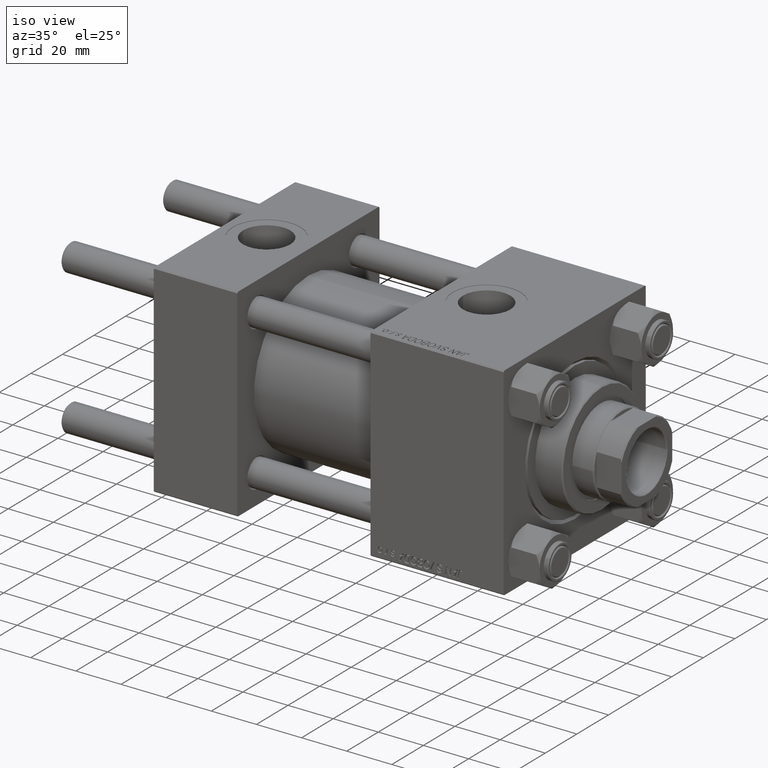
[diagram: clean part render]
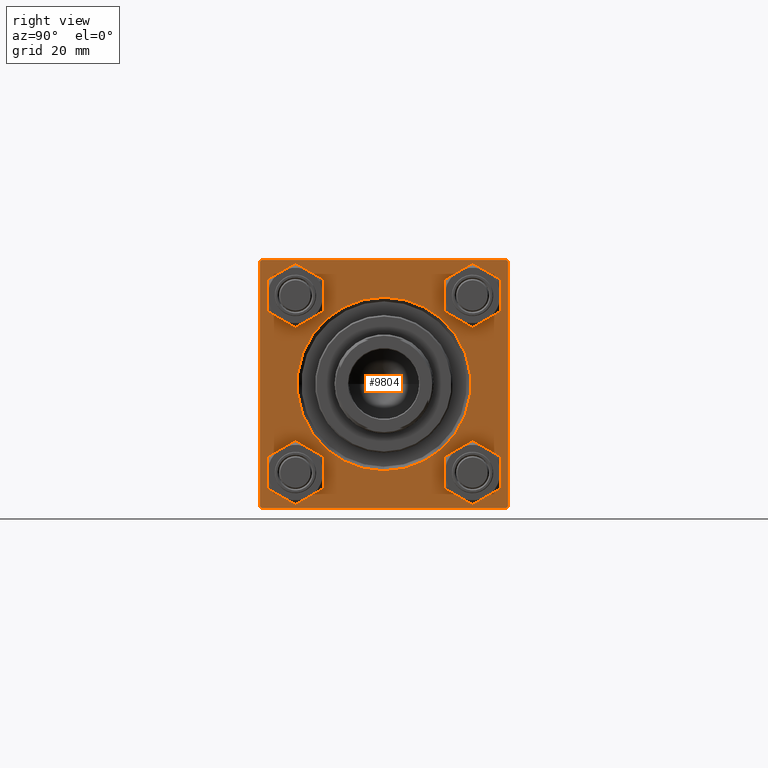
[diagram: tour spotlight — one face highlighted and labeled with its STEP entity id]
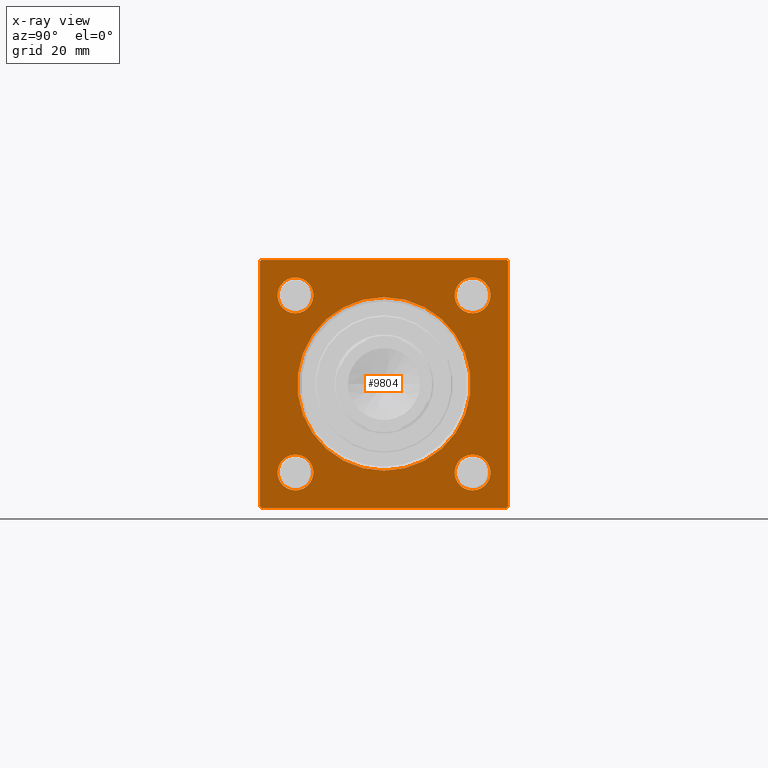
[diagram: x-ray of the same camera — body ghosted, this tour face saturated]
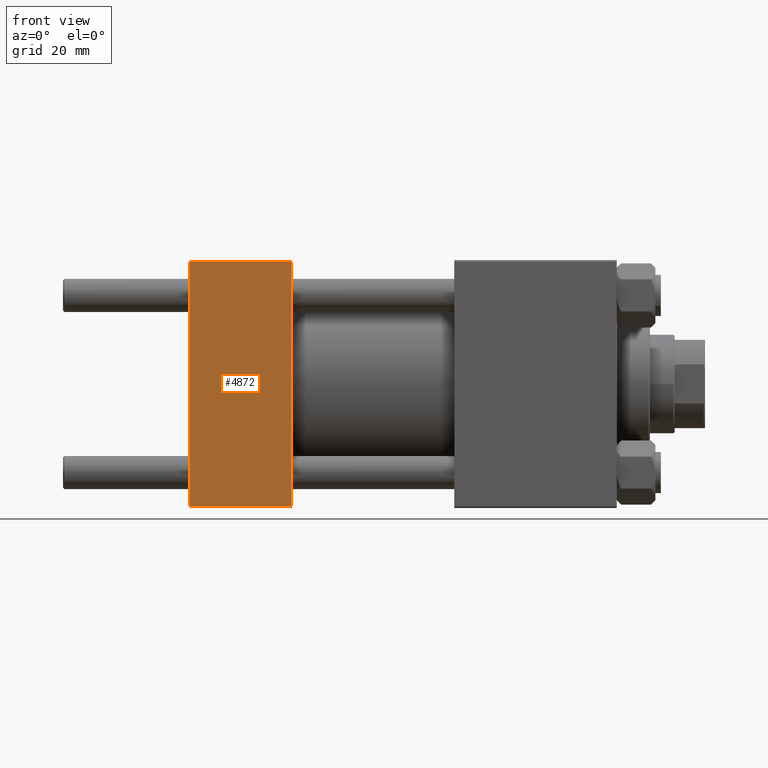
[diagram: tour spotlight — one face highlighted and labeled with its STEP entity id]
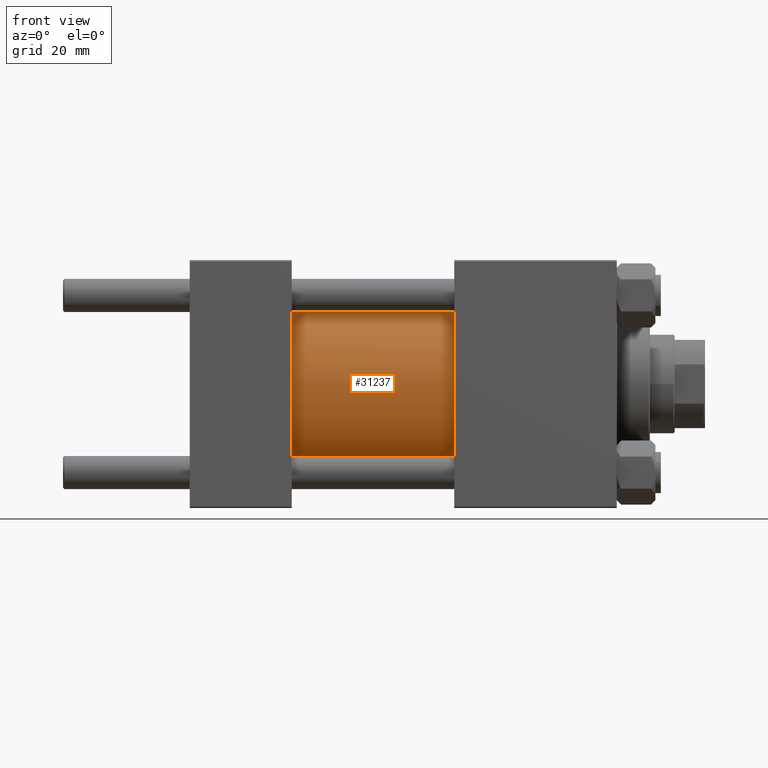
[diagram: tour spotlight — one face highlighted and labeled with its STEP entity id]
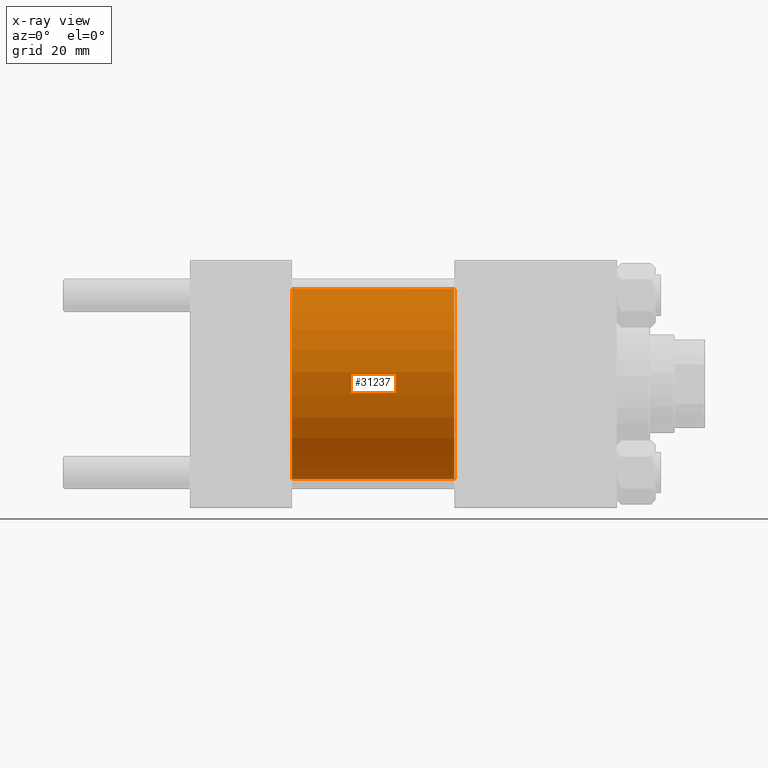
[diagram: x-ray of the same camera — body ghosted, this tour face saturated]
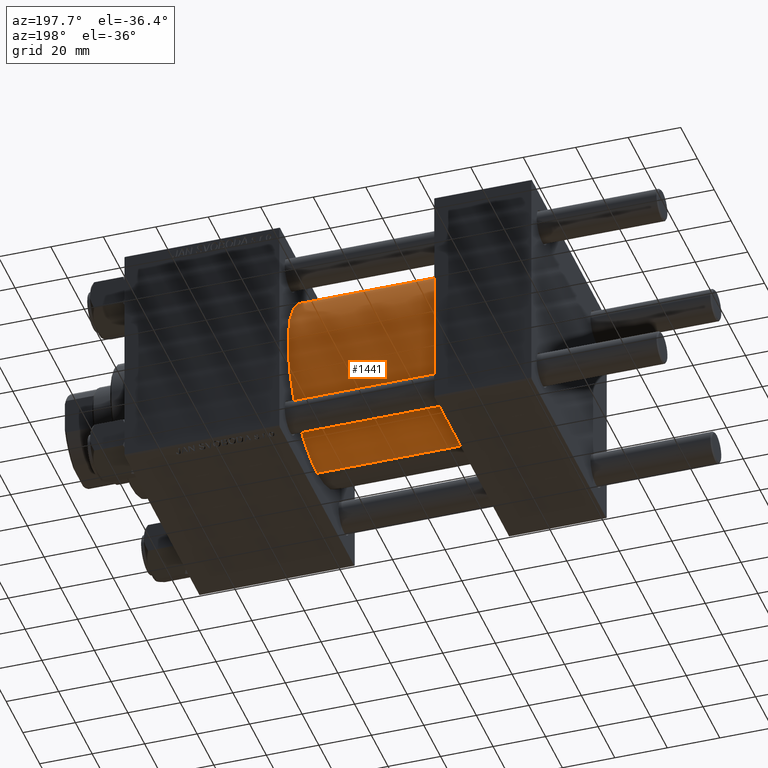
[diagram: tour spotlight — one face highlighted and labeled with its STEP entity id]
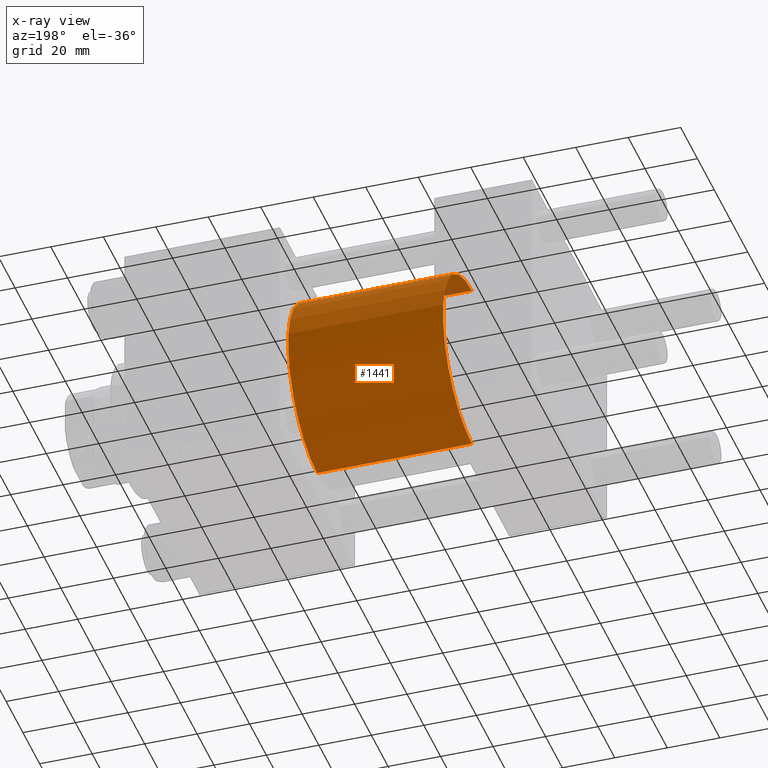
[diagram: x-ray of the same camera — body ghosted, this tour face saturated]
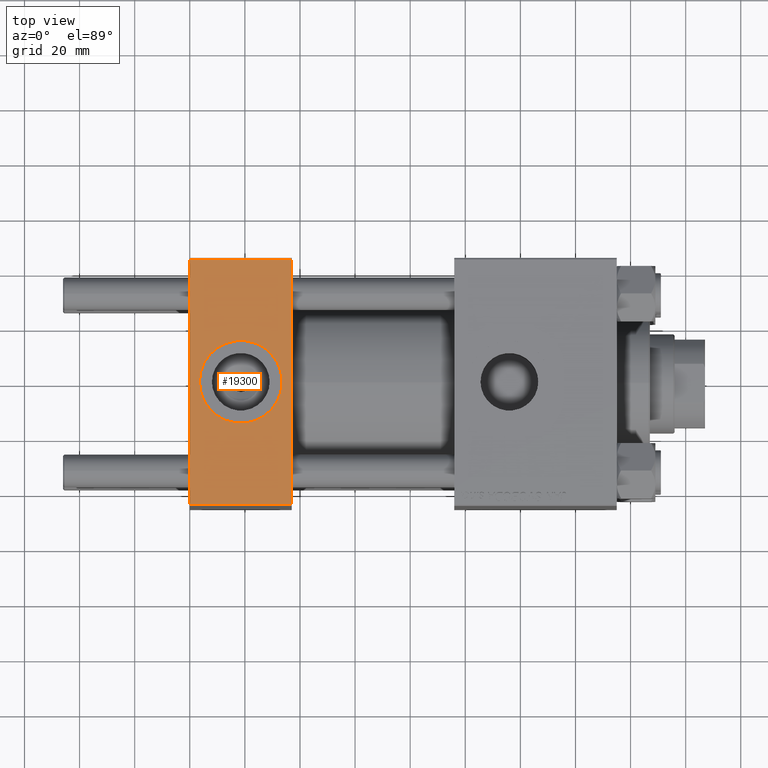
[diagram: tour spotlight — one face highlighted and labeled with its STEP entity id]
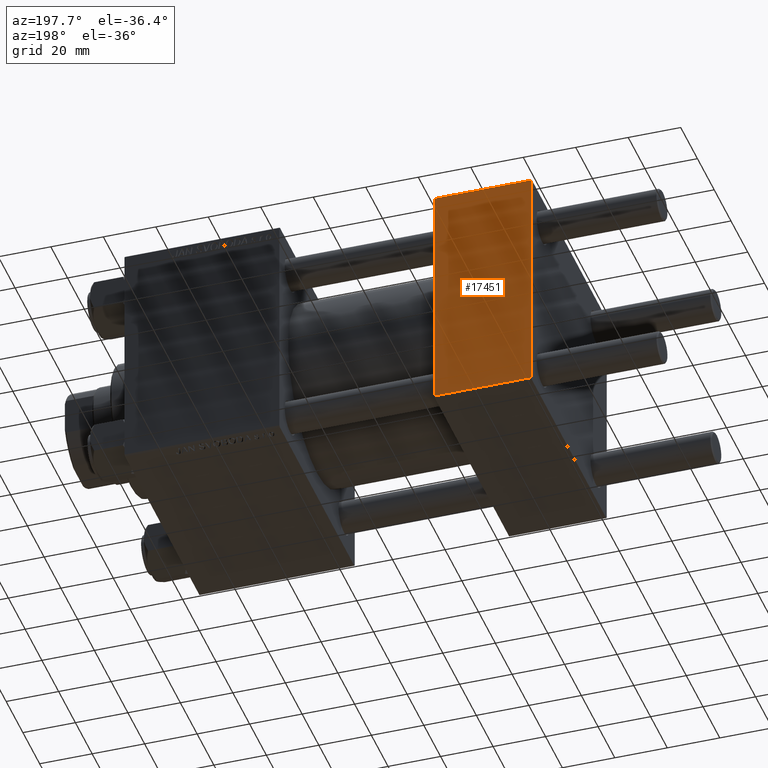
[diagram: tour spotlight — one face highlighted and labeled with its STEP entity id]
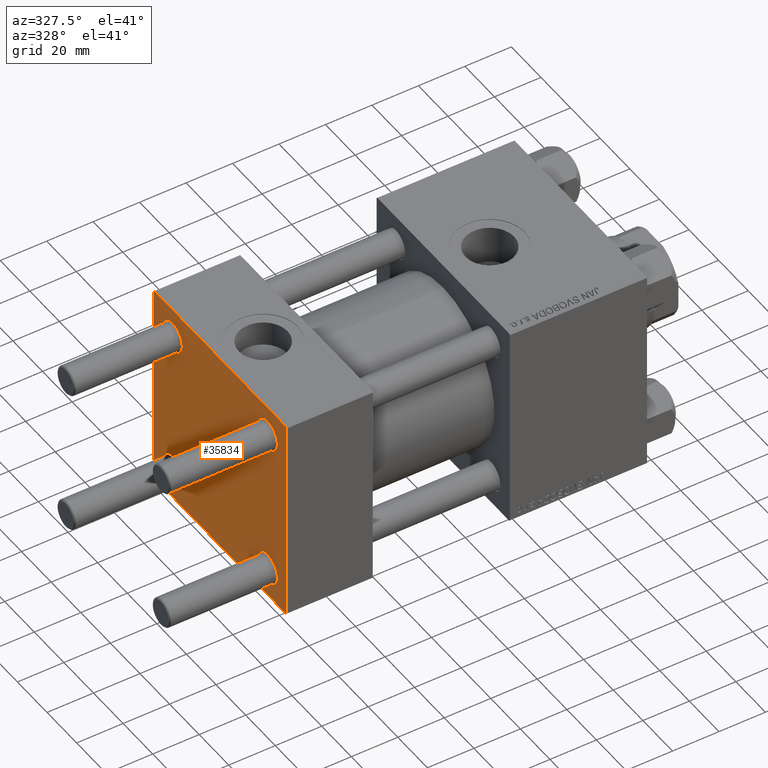
[diagram: tour spotlight — one face highlighted and labeled with its STEP entity id]
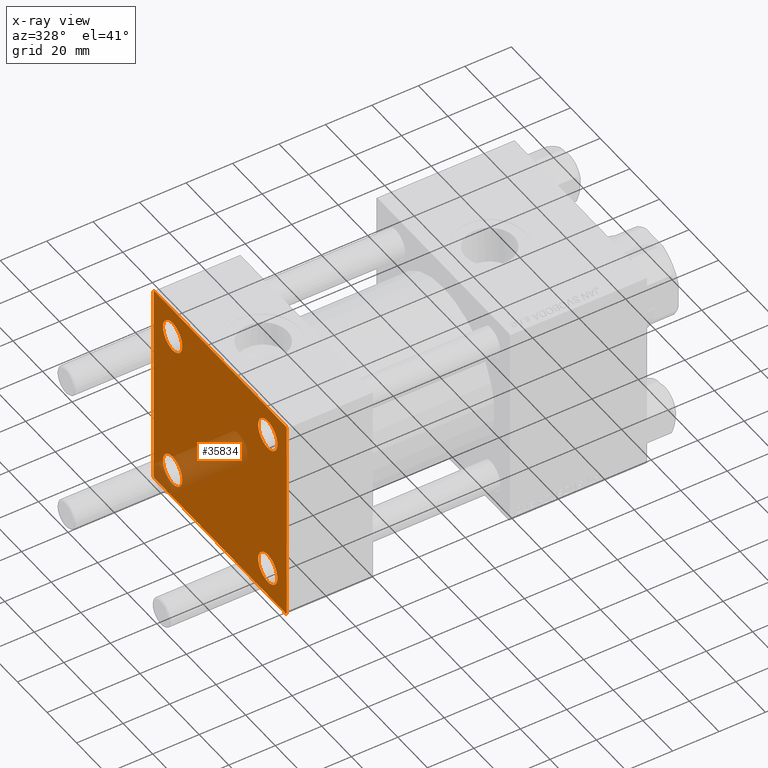
[diagram: x-ray of the same camera — body ghosted, this tour face saturated]
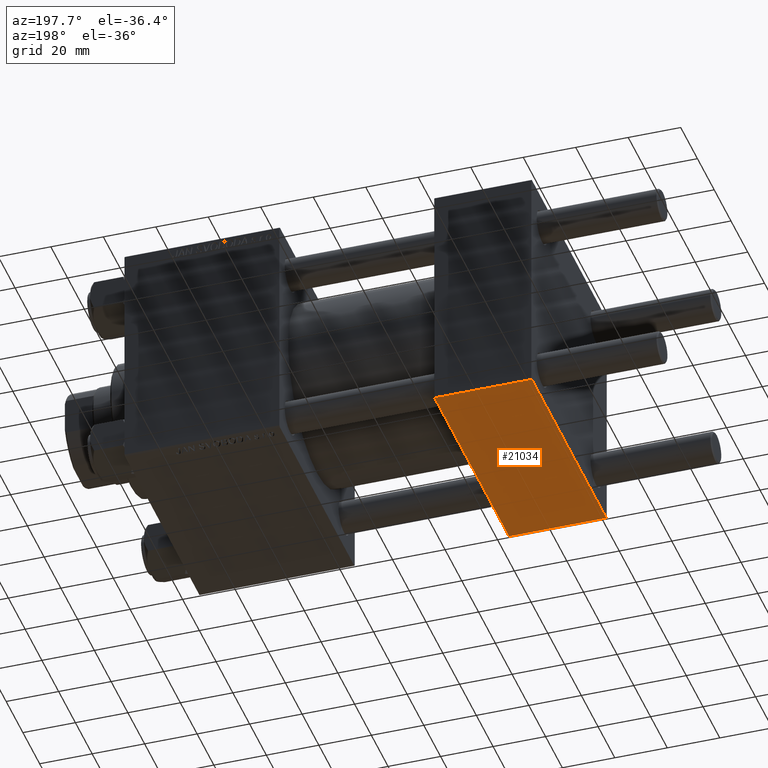
[diagram: tour spotlight — one face highlighted and labeled with its STEP entity id]
A machine part: a face-by-face anatomy tour. The part has 1134 B-rep faces; the first image is the clean iso view, then the 8 largest visible faces are spotlighted one at a time (largest first), each with its STEP entity span.

Face 1 — right view, entity #9804. An x-ray twin of the same camera follows (body ghosted, this face saturated) — the face is partly hidden behind the body. In plain terms, the highlighted planar face has unit normal (-1, 0, 0).
Definition (entity closure, byte-faithful):
#967 = DIRECTION ( 'NONE',  ( 0.000000000000000000, 0.000000000000000000, 1.000000000000000000 ) ) ;
#1163 = ORIENTED_EDGE ( 'NONE', *, *, #9986, .T. ) ;
#1284 = ORIENTED_EDGE ( 'NONE', *, *, #13072, .F. ) ;
#1301 = CARTESIAN_POINT ( 'NONE',  ( 155.0000000000000000, 0.000000000000000000, 0.000000000000000000 ) ) ;
#1868 = CARTESIAN_POINT ( 'NONE',  ( 155.0000000000000000, 32.14999999999999147, -32.15000000000000568 ) ) ;
#2007 = CARTESIAN_POINT ( 'NONE',  ( 155.0000000000000000, 32.14999999999999147, 32.15000000000000568 ) ) ;
#2206 = CIRCLE ( 'NONE', #34367, 6.500000000000061284 ) ;
#2856 = ORIENTED_EDGE ( 'NONE', *, *, #17384, .T. ) ;
#3367 = ORIENTED_EDGE ( 'NONE', *, *, #28137, .F. ) ;
#4456 = CARTESIAN_POINT ( 'NONE',  ( 155.0000000000000000, -32.14999999999997726, -25.64999999999994884 ) ) ;
#5465 = EDGE_CURVE ( 'NONE', #45666, #49469, #15389, .T. ) ;
#5633 = CARTESIAN_POINT ( 'NONE',  ( 155.0000000000000000, 32.14999999999999147, -38.65000000000006963 ) ) ;
#5786 = AXIS2_PLACEMENT_3D ( 'NONE', #2007, #48321, #21630 ) ;
#5815 = LINE ( 'NONE', #28462, #49615 ) ;
#6277 = AXIS2_PLACEMENT_3D ( 'NONE', #1301, #27967, #35534 ) ;
#6282 = CARTESIAN_POINT ( 'NONE',  ( 155.0000000000000000, -32.14999999999997726, 25.64999999999994884 ) ) ;
#6575 = CIRCLE ( 'NONE', #5786, 6.500000000000061284 ) ;
#6636 = ORIENTED_EDGE ( 'NONE', *, *, #48185, .T. ) ;
#6940 = EDGE_CURVE ( 'NONE', #10728, #13804, #5815, .T. ) ;
#7211 = AXIS2_PLACEMENT_3D ( 'NONE', #1868, #17222, #24530 ) ;
#8517 = DIRECTION ( 'NONE',  ( -1.000000000000000000, -0.000000000000000000, -0.000000000000000000 ) ) ;
#8711 = EDGE_CURVE ( 'NONE', #20660, #17192, #2206, .T. ) ;
#9014 = CARTESIAN_POINT ( 'NONE',  ( 155.0000000000000000, -32.14999999999997726, 32.15000000000001279 ) ) ;
#9123 = VERTEX_POINT ( 'NONE', #47638 ) ;
#9804 = ADVANCED_FACE ( 'NONE', ( #15748, #31080, #27317, #42697, #29035, #39658 ), #43691, .F. ) ;
#9914 = CARTESIAN_POINT ( 'NONE',  ( 155.0000000000000000, -45.00000000000000000, 44.99999999999998579 ) ) ;
#9986 = EDGE_CURVE ( 'NONE', #31466, #15424, #34404, .T. ) ;
#10072 = DIRECTION ( 'NONE',  ( -0.000000000000000000, 0.7071067811865474617, 0.7071067811865474617 ) ) ;
#10728 = VERTEX_POINT ( 'NONE', #36000 ) ;
#11461 = ORIENTED_EDGE ( 'NONE', *, *, #6940, .T. ) ;
#11485 = ORIENTED_EDGE ( 'NONE', *, *, #28198, .T. ) ;
#11598 = CARTESIAN_POINT ( 'NONE',  ( 155.0000000000000000, -44.49999999999990052, -45.00000000000000000 ) ) ;
#11983 = DIRECTION ( 'NONE',  ( 0.000000000000000000, 0.000000000000000000, 1.000000000000000000 ) ) ;
#12416 = EDGE_LOOP ( 'NONE', ( #11485, #13266 ) ) ;
#12618 = VECTOR ( 'NONE', #45531, 1000.000000000000000 ) ;
#12695 = CARTESIAN_POINT ( 'NONE',  ( 155.0000000000000000, 45.00000000000001421, 45.00000000000000000 ) ) ;
#12733 = AXIS2_PLACEMENT_3D ( 'NONE', #41513, #26146, #22136 ) ;
#12896 = EDGE_LOOP ( 'NONE', ( #46704, #1163 ) ) ;
#13072 = EDGE_CURVE ( 'NONE', #9123, #13804, #30380, .T. ) ;
#13216 = DIRECTION ( 'NONE',  ( -1.000000000000000000, 0.000000000000000000, -0.000000000000000000 ) ) ;
#13266 = ORIENTED_EDGE ( 'NONE', *, *, #15123, .T. ) ;
#13334 = VECTOR ( 'NONE', #46619, 1000.000000000000114 ) ;
#13433 = DIRECTION ( 'NONE',  ( 0.000000000000000000, -1.000000000000000000, -1.541976423090495140E-16 ) ) ;
#13804 = VERTEX_POINT ( 'NONE', #11598 ) ;
#14576 = CARTESIAN_POINT ( 'NONE',  ( 155.0000000000000000, 45.00000000000001421, 45.00000000000000000 ) ) ;
#14806 = DIRECTION ( 'NONE',  ( 0.000000000000000000, -1.000000000000000000, 0.000000000000000000 ) ) ;
#15123 = EDGE_CURVE ( 'NONE', #32362, #40669, #45727, .T. ) ;
#15159 = CARTESIAN_POINT ( 'NONE',  ( 155.0000000000000000, 44.49999999999998579, 45.00000000000000000 ) ) ;
#15171 = CARTESIAN_POINT ( 'NONE',  ( 155.0000000000000000, -32.14999999999997726, -38.65000000000007674 ) ) ;
#15389 = LINE ( 'NONE', #22936, #17373 ) ;
#15424 = VERTEX_POINT ( 'NONE', #31593 ) ;
#15748 = FACE_BOUND ( 'NONE', #34944, .T. ) ;
#15828 = ORIENTED_EDGE ( 'NONE', *, *, #18927, .T. ) ;
#15841 = DIRECTION ( 'NONE',  ( 0.000000000000000000, 0.000000000000000000, 1.000000000000000000 ) ) ;
#16741 = AXIS2_PLACEMENT_3D ( 'NONE', #28790, #13216, #36355 ) ;
#17064 = AXIS2_PLACEMENT_3D ( 'NONE', #37937, #41219, #22330 ) ;
#17192 = VERTEX_POINT ( 'NONE', #42685 ) ;
#17222 = DIRECTION ( 'NONE',  ( -1.000000000000000000, -0.000000000000000000, -0.000000000000000000 ) ) ;
#17366 = EDGE_CURVE ( 'NONE', #47102, #44162, #23315, .T. ) ;
#17373 = VECTOR ( 'NONE', #27194, 1000.000000000000114 ) ;
#17384 = EDGE_CURVE ( 'NONE', #49469, #10728, #44645, .T. ) ;
#17508 = VECTOR ( 'NONE', #14806, 1000.000000000000000 ) ;
#17531 = AXIS2_PLACEMENT_3D ( 'NONE', #20096, #8517, #967 ) ;
#18927 = EDGE_CURVE ( 'NONE', #20622, #45666, #47439, .T. ) ;
#19148 = VERTEX_POINT ( 'NONE', #19695 ) ;
#19695 = CARTESIAN_POINT ( 'NONE',  ( 155.0000000000000000, 45.00000000000001421, -44.49999999999997158 ) ) ;
#19722 = ORIENTED_EDGE ( 'NONE', *, *, #43444, .T. ) ;
#19959 = CIRCLE ( 'NONE', #17531, 6.500000000000061284 ) ;
#20096 = CARTESIAN_POINT ( 'NONE',  ( 155.0000000000000000, -32.14999999999997726, 32.15000000000001279 ) ) ;
#20278 = CIRCLE ( 'NONE', #17064, 6.500000000000061284 ) ;
#20622 = VERTEX_POINT ( 'NONE', #31640 ) ;
#20660 = VERTEX_POINT ( 'NONE', #41189 ) ;
#21339 = ORIENTED_EDGE ( 'NONE', *, *, #8711, .T. ) ;
#21630 = DIRECTION ( 'NONE',  ( 0.000000000000000000, 0.000000000000000000, 1.000000000000000000 ) ) ;
#21895 = CARTESIAN_POINT ( 'NONE',  ( 155.0000000000000000, 45.00000000000001421, -44.50000000000000000 ) ) ;
#22136 = DIRECTION ( 'NONE',  ( 0.000000000000000000, 0.000000000000000000, 1.000000000000000000 ) ) ;
#22330 = DIRECTION ( 'NONE',  ( 0.000000000000000000, 0.000000000000000000, 1.000000000000000000 ) ) ;
#22382 = EDGE_CURVE ( 'NONE', #26748, #20622, #38560, .T. ) ;
#22792 = CARTESIAN_POINT ( 'NONE',  ( 155.0000000000000000, 32.14999999999999147, 32.15000000000000568 ) ) ;
#22936 = CARTESIAN_POINT ( 'NONE',  ( 155.0000000000000000, -45.00000000000000000, 44.49999999999995737 ) ) ;
#23315 = CIRCLE ( 'NONE', #7211, 6.500000000000061284 ) ;
#23479 = EDGE_LOOP ( 'NONE', ( #2856, #11461, #1284, #6636, #3367, #45142, #15828, #23589 ) ) ;
#23589 = ORIENTED_EDGE ( 'NONE', *, *, #5465, .T. ) ;
#24530 = DIRECTION ( 'NONE',  ( 0.000000000000000000, 0.000000000000000000, 1.000000000000000000 ) ) ;
#24809 = AXIS2_PLACEMENT_3D ( 'NONE', #9014, #32385, #28608 ) ;
#25098 = CARTESIAN_POINT ( 'NONE',  ( 155.0000000000000000, -32.14999999999997726, 38.65000000000007674 ) ) ;
#26140 = LINE ( 'NONE', #14576, #12618 ) ;
#26146 = DIRECTION ( 'NONE',  ( -1.000000000000000000, -0.000000000000000000, -0.000000000000000000 ) ) ;
#26748 = VERTEX_POINT ( 'NONE', #48273 ) ;
#27194 = DIRECTION ( 'NONE',  ( -0.000000000000000000, -0.7071067811865474617, -0.7071067811865474617 ) ) ;
#27317 = FACE_BOUND ( 'NONE', #48977, .T. ) ;
#27723 = ORIENTED_EDGE ( 'NONE', *, *, #38892, .T. ) ;
#27967 = DIRECTION ( 'NONE',  ( -1.000000000000000000, -0.000000000000000000, -0.000000000000000000 ) ) ;
#27981 = CIRCLE ( 'NONE', #12733, 31.50000000000000000 ) ;
#28137 = EDGE_CURVE ( 'NONE', #26748, #19148, #26140, .T. ) ;
#28198 = EDGE_CURVE ( 'NONE', #40669, #32362, #19959, .T. ) ;
#28462 = CARTESIAN_POINT ( 'NONE',  ( 155.0000000000000000, -44.49999999999992895, -45.00000000000000000 ) ) ;
#28498 = ORIENTED_EDGE ( 'NONE', *, *, #40712, .T. ) ;
#28608 = DIRECTION ( 'NONE',  ( 0.000000000000000000, 0.000000000000000000, 1.000000000000000000 ) ) ;
#28790 = CARTESIAN_POINT ( 'NONE',  ( 155.0000000000000000, 0.000000000000000000, 0.000000000000000000 ) ) ;
#29035 = FACE_BOUND ( 'NONE', #12896, .T. ) ;
#29680 = ORIENTED_EDGE ( 'NONE', *, *, #17366, .T. ) ;
#29698 = CARTESIAN_POINT ( 'NONE',  ( 155.0000000000000000, 32.14999999999999147, -25.64999999999994529 ) ) ;
#30380 = LINE ( 'NONE', #37959, #17508 ) ;
#31077 = DIRECTION ( 'NONE',  ( -1.000000000000000000, -0.000000000000000000, -0.000000000000000000 ) ) ;
#31080 = FACE_BOUND ( 'NONE', #46279, .T. ) ;
#31466 = VERTEX_POINT ( 'NONE', #32484 ) ;
#31593 = CARTESIAN_POINT ( 'NONE',  ( 155.0000000000000000, 0.000000000000000000, -31.50000000000000000 ) ) ;
#31640 = CARTESIAN_POINT ( 'NONE',  ( 155.0000000000000000, 44.49999999999998579, 45.00000000000000000 ) ) ;
#32150 = EDGE_CURVE ( 'NONE', #15424, #31466, #27981, .T. ) ;
#32342 = ORIENTED_EDGE ( 'NONE', *, *, #45521, .T. ) ;
#32362 = VERTEX_POINT ( 'NONE', #25098 ) ;
#32385 = DIRECTION ( 'NONE',  ( -1.000000000000000000, -0.000000000000000000, -0.000000000000000000 ) ) ;
#32484 = CARTESIAN_POINT ( 'NONE',  ( 155.0000000000000000, 3.857637417314162689E-15, 31.50000000000000000 ) ) ;
#32967 = DIRECTION ( 'NONE',  ( 0.000000000000000000, 0.7071067811865524577, -0.7071067811865426878 ) ) ;
#33863 = DIRECTION ( 'NONE',  ( -1.000000000000000000, -0.000000000000000000, -0.000000000000000000 ) ) ;
#33965 = CARTESIAN_POINT ( 'NONE',  ( 155.0000000000000000, 32.14999999999999147, -32.15000000000000568 ) ) ;
#34367 = AXIS2_PLACEMENT_3D ( 'NONE', #22792, #33863, #38146 ) ;
#34404 = CIRCLE ( 'NONE', #6277, 31.50000000000000000 ) ;
#34622 = CARTESIAN_POINT ( 'NONE',  ( 155.0000000000000000, -32.14999999999997726, -32.15000000000001279 ) ) ;
#34944 = EDGE_LOOP ( 'NONE', ( #32342, #27723 ) ) ;
#35534 = DIRECTION ( 'NONE',  ( 0.000000000000000000, 0.000000000000000000, 1.000000000000000000 ) ) ;
#36000 = CARTESIAN_POINT ( 'NONE',  ( 155.0000000000000000, -44.99999999999999289, -44.49999999999991473 ) ) ;
#36355 = DIRECTION ( 'NONE',  ( -0.000000000000000000, 0.000000000000000000, 1.000000000000000000 ) ) ;
#36416 = VECTOR ( 'NONE', #10072, 1000.000000000000114 ) ;
#36588 = DIRECTION ( 'NONE',  ( 0.000000000000000000, 7.709882115452478166E-17, -1.000000000000000000 ) ) ;
#36741 = LINE ( 'NONE', #21895, #36416 ) ;
#37042 = CIRCLE ( 'NONE', #44275, 6.500000000000061284 ) ;
#37052 = VERTEX_POINT ( 'NONE', #4456 ) ;
#37868 = CIRCLE ( 'NONE', #49125, 6.500000000000061284 ) ;
#37937 = CARTESIAN_POINT ( 'NONE',  ( 155.0000000000000000, -32.14999999999997726, -32.15000000000001279 ) ) ;
#37959 = CARTESIAN_POINT ( 'NONE',  ( 155.0000000000000000, 45.00000000000001421, -45.00000000000000000 ) ) ;
#38146 = DIRECTION ( 'NONE',  ( 0.000000000000000000, 0.000000000000000000, 1.000000000000000000 ) ) ;
#38179 = CARTESIAN_POINT ( 'NONE',  ( 155.0000000000000000, -44.49999999999994316, 44.99999999999998579 ) ) ;
#38560 = LINE ( 'NONE', #15159, #13334 ) ;
#38892 = EDGE_CURVE ( 'NONE', #37052, #45253, #37042, .T. ) ;
#39377 = VECTOR ( 'NONE', #36588, 1000.000000000000000 ) ;
#39658 = FACE_OUTER_BOUND ( 'NONE', #23479, .T. ) ;
#40669 = VERTEX_POINT ( 'NONE', #6282 ) ;
#40712 = EDGE_CURVE ( 'NONE', #17192, #20660, #6575, .T. ) ;
#41095 = CARTESIAN_POINT ( 'NONE',  ( 155.0000000000000000, -45.00000000000000000, 44.49999999999995737 ) ) ;
#41189 = CARTESIAN_POINT ( 'NONE',  ( 155.0000000000000000, 32.14999999999999147, 25.64999999999994529 ) ) ;
#41219 = DIRECTION ( 'NONE',  ( -1.000000000000000000, -0.000000000000000000, -0.000000000000000000 ) ) ;
#41513 = CARTESIAN_POINT ( 'NONE',  ( 155.0000000000000000, 0.000000000000000000, 0.000000000000000000 ) ) ;
#41810 = VECTOR ( 'NONE', #13433, 1000.000000000000000 ) ;
#42685 = CARTESIAN_POINT ( 'NONE',  ( 155.0000000000000000, 32.14999999999999147, 38.65000000000007674 ) ) ;
#42697 = FACE_BOUND ( 'NONE', #12416, .T. ) ;
#43444 = EDGE_CURVE ( 'NONE', #44162, #47102, #37868, .T. ) ;
#43691 = PLANE ( 'NONE',  #16741 ) ;
#44162 = VERTEX_POINT ( 'NONE', #5633 ) ;
#44275 = AXIS2_PLACEMENT_3D ( 'NONE', #34622, #31077, #11983 ) ;
#44645 = LINE ( 'NONE', #9914, #39377 ) ;
#45142 = ORIENTED_EDGE ( 'NONE', *, *, #22382, .T. ) ;
#45253 = VERTEX_POINT ( 'NONE', #15171 ) ;
#45521 = EDGE_CURVE ( 'NONE', #45253, #37052, #20278, .T. ) ;
#45531 = DIRECTION ( 'NONE',  ( 0.000000000000000000, 0.000000000000000000, -1.000000000000000000 ) ) ;
#45666 = VERTEX_POINT ( 'NONE', #38179 ) ;
#45727 = CIRCLE ( 'NONE', #24809, 6.500000000000061284 ) ;
#46279 = EDGE_LOOP ( 'NONE', ( #19722, #29680 ) ) ;
#46619 = DIRECTION ( 'NONE',  ( 0.000000000000000000, -0.7071067811865474617, 0.7071067811865474617 ) ) ;
#46704 = ORIENTED_EDGE ( 'NONE', *, *, #32150, .T. ) ;
#46803 = DIRECTION ( 'NONE',  ( -1.000000000000000000, -0.000000000000000000, -0.000000000000000000 ) ) ;
#47102 = VERTEX_POINT ( 'NONE', #29698 ) ;
#47439 = LINE ( 'NONE', #12695, #41810 ) ;
#47638 = CARTESIAN_POINT ( 'NONE',  ( 155.0000000000000000, 44.50000000000001421, -45.00000000000000000 ) ) ;
#48185 = EDGE_CURVE ( 'NONE', #9123, #19148, #36741, .T. ) ;
#48273 = CARTESIAN_POINT ( 'NONE',  ( 155.0000000000000000, 45.00000000000001421, 44.49999999999997158 ) ) ;
#48321 = DIRECTION ( 'NONE',  ( -1.000000000000000000, -0.000000000000000000, -0.000000000000000000 ) ) ;
#48977 = EDGE_LOOP ( 'NONE', ( #21339, #28498 ) ) ;
#49125 = AXIS2_PLACEMENT_3D ( 'NONE', #33965, #46803, #15841 ) ;
#49469 = VERTEX_POINT ( 'NONE', #41095 ) ;
#49615 = VECTOR ( 'NONE', #32967, 1000.000000000000000 ) ;

Face 2 — front view, entity #4872. In plain terms, the highlighted planar face has unit normal (0, 1, 0).
Definition (entity closure, byte-faithful):
#2162 = ORIENTED_EDGE ( 'NONE', *, *, #45886, .T. ) ;
#2564 = CARTESIAN_POINT ( 'NONE',  ( 0.000000000000000000, -45.00000000000000000, -44.49999999999995737 ) ) ;
#4358 = DIRECTION ( 'NONE',  ( 0.000000000000000000, 7.709882115452476934E-17, -1.000000000000000000 ) ) ;
#4430 = EDGE_CURVE ( 'NONE', #20071, #40424, #25765, .T. ) ;
#4872 = ADVANCED_FACE ( 'NONE', ( #15128 ), #22432, .F. ) ;
#6138 = CARTESIAN_POINT ( 'NONE',  ( 0.000000000000000000, -45.00000000000000711, 45.00000000000000000 ) ) ;
#8416 = CARTESIAN_POINT ( 'NONE',  ( 37.00000000000000000, -45.00000000000000000, -44.49999999999995737 ) ) ;
#9950 = DIRECTION ( 'NONE',  ( -1.000000000000000000, 0.000000000000000000, 0.000000000000000000 ) ) ;
#10637 = VECTOR ( 'NONE', #48474, 1000.000000000000000 ) ;
#12648 = LINE ( 'NONE', #46141, #46598 ) ;
#13213 = CARTESIAN_POINT ( 'NONE',  ( 37.00000000000000000, -45.00000000000000711, 44.49999999999997158 ) ) ;
#15128 = FACE_OUTER_BOUND ( 'NONE', #25546, .T. ) ;
#17634 = EDGE_CURVE ( 'NONE', #38993, #30193, #12648, .T. ) ;
#18963 = VECTOR ( 'NONE', #41128, 1000.000000000000000 ) ;
#20071 = VERTEX_POINT ( 'NONE', #36281 ) ;
#21395 = AXIS2_PLACEMENT_3D ( 'NONE', #26443, #30200, #45582 ) ;
#21467 = EDGE_CURVE ( 'NONE', #40424, #30193, #41169, .T. ) ;
#21519 = LINE ( 'NONE', #44440, #48391 ) ;
#22432 = PLANE ( 'NONE',  #21395 ) ;
#24167 = ORIENTED_EDGE ( 'NONE', *, *, #4430, .T. ) ;
#25334 = ORIENTED_EDGE ( 'NONE', *, *, #21467, .T. ) ;
#25546 = EDGE_LOOP ( 'NONE', ( #24167, #25334, #43910, #2162 ) ) ;
#25765 = LINE ( 'NONE', #6138, #18963 ) ;
#25805 = CARTESIAN_POINT ( 'NONE',  ( 37.00000000000000000, -45.00000000000000000, -44.49999999999998579 ) ) ;
#26443 = CARTESIAN_POINT ( 'NONE',  ( 37.00000000000000000, -45.00000000000000711, 45.00000000000000000 ) ) ;
#30193 = VERTEX_POINT ( 'NONE', #8416 ) ;
#30200 = DIRECTION ( 'NONE',  ( -0.000000000000000000, 1.000000000000000000, 7.709882115452478166E-17 ) ) ;
#36281 = CARTESIAN_POINT ( 'NONE',  ( 0.000000000000000000, -45.00000000000000711, 44.49999999999997158 ) ) ;
#38993 = VERTEX_POINT ( 'NONE', #13213 ) ;
#40424 = VERTEX_POINT ( 'NONE', #2564 ) ;
#41128 = DIRECTION ( 'NONE',  ( 0.000000000000000000, 7.709882115452476934E-17, -1.000000000000000000 ) ) ;
#41169 = LINE ( 'NONE', #25805, #10637 ) ;
#43910 = ORIENTED_EDGE ( 'NONE', *, *, #17634, .F. ) ;
#44440 = CARTESIAN_POINT ( 'NONE',  ( 37.00000000000000000, -45.00000000000000711, 44.49999999999997158 ) ) ;
#45582 = DIRECTION ( 'NONE',  ( 0.000000000000000000, -7.709882115452478166E-17, 1.000000000000000000 ) ) ;
#45886 = EDGE_CURVE ( 'NONE', #38993, #20071, #21519, .T. ) ;
#46141 = CARTESIAN_POINT ( 'NONE',  ( 37.00000000000000000, -45.00000000000000711, 45.00000000000000000 ) ) ;
#46598 = VECTOR ( 'NONE', #4358, 1000.000000000000000 ) ;
#48391 = VECTOR ( 'NONE', #9950, 1000.000000000000000 ) ;
#48474 = DIRECTION ( 'NONE',  ( 1.000000000000000000, 0.000000000000000000, 0.000000000000000000 ) ) ;

Face 3 — front view, entity #31237. An x-ray twin of the same camera follows (body ghosted, this face saturated) — the face is partly hidden behind the body. In plain terms, the highlighted cylindrical surface (partial cylindrical patch) has radius 34.5 mm, axis along (-1, -0, -0).
Definition (entity closure, byte-faithful):
#907 = CARTESIAN_POINT ( 'NONE',  ( 96.00000000000000000, 0.000000000000000000, 34.49999999999999289 ) ) ;
#2184 = ORIENTED_EDGE ( 'NONE', *, *, #14720, .T. ) ;
#3499 = EDGE_CURVE ( 'NONE', #40581, #39853, #16506, .T. ) ;
#4411 = EDGE_CURVE ( 'NONE', #38443, #31577, #6648, .T. ) ;
#6648 = LINE ( 'NONE', #21487, #7681 ) ;
#7279 = CARTESIAN_POINT ( 'NONE',  ( 37.00000000000000000, 0.000000000000000000, 0.000000000000000000 ) ) ;
#7336 = CIRCLE ( 'NONE', #16171, 34.49999999999999289 ) ;
#7681 = VECTOR ( 'NONE', #48183, 1000.000000000000000 ) ;
#8760 = ORIENTED_EDGE ( 'NONE', *, *, #3499, .T. ) ;
#8820 = CARTESIAN_POINT ( 'NONE',  ( 96.00000000000000000, 4.225031457058367344E-15, -34.49999999999999289 ) ) ;
#9987 = DIRECTION ( 'NONE',  ( 1.000000000000000000, 0.000000000000000000, 0.000000000000000000 ) ) ;
#10056 = DIRECTION ( 'NONE',  ( 1.000000000000000000, -0.000000000000000000, 0.000000000000000000 ) ) ;
#10057 = VECTOR ( 'NONE', #39418, 1000.000000000000000 ) ;
#11120 = AXIS2_PLACEMENT_3D ( 'NONE', #7279, #10056, #21879 ) ;
#14172 = DIRECTION ( 'NONE',  ( 0.000000000000000000, 0.000000000000000000, 1.000000000000000000 ) ) ;
#14720 = EDGE_CURVE ( 'NONE', #39853, #31577, #32801, .T. ) ;
#16171 = AXIS2_PLACEMENT_3D ( 'NONE', #40946, #9987, #40688 ) ;
#16506 = LINE ( 'NONE', #907, #10057 ) ;
#21487 = CARTESIAN_POINT ( 'NONE',  ( 96.00000000000000000, 4.225031457058367344E-15, -34.49999999999999289 ) ) ;
#21731 = DIRECTION ( 'NONE',  ( -1.000000000000000000, -0.000000000000000000, -0.000000000000000000 ) ) ;
#21879 = DIRECTION ( 'NONE',  ( 0.000000000000000000, 0.000000000000000000, 1.000000000000000000 ) ) ;
#24184 = CARTESIAN_POINT ( 'NONE',  ( 96.00000000000000000, 0.000000000000000000, 34.49999999999999289 ) ) ;
#24766 = ORIENTED_EDGE ( 'NONE', *, *, #4411, .F. ) ;
#29199 = CARTESIAN_POINT ( 'NONE',  ( 37.00000000000000000, 4.225031457058367344E-15, -34.49999999999999289 ) ) ;
#31237 = ADVANCED_FACE ( 'NONE', ( #34035 ), #41853, .T. ) ;
#31577 = VERTEX_POINT ( 'NONE', #29199 ) ;
#32333 = CARTESIAN_POINT ( 'NONE',  ( 37.00000000000000000, 0.000000000000000000, 34.49999999999999289 ) ) ;
#32801 = CIRCLE ( 'NONE', #11120, 34.49999999999999289 ) ;
#34035 = FACE_OUTER_BOUND ( 'NONE', #47498, .T. ) ;
#37083 = CARTESIAN_POINT ( 'NONE',  ( 96.00000000000000000, 0.000000000000000000, 0.000000000000000000 ) ) ;
#38443 = VERTEX_POINT ( 'NONE', #8820 ) ;
#39418 = DIRECTION ( 'NONE',  ( -1.000000000000000000, -0.000000000000000000, -0.000000000000000000 ) ) ;
#39642 = EDGE_CURVE ( 'NONE', #40581, #38443, #7336, .T. ) ;
#39853 = VERTEX_POINT ( 'NONE', #32333 ) ;
#40581 = VERTEX_POINT ( 'NONE', #24184 ) ;
#40688 = DIRECTION ( 'NONE',  ( 0.000000000000000000, 0.000000000000000000, -1.000000000000000000 ) ) ;
#40946 = CARTESIAN_POINT ( 'NONE',  ( 96.00000000000000000, 0.000000000000000000, 0.000000000000000000 ) ) ;
#41853 = CYLINDRICAL_SURFACE ( 'NONE', #46472, 34.49999999999999289 ) ;
#42367 = ORIENTED_EDGE ( 'NONE', *, *, #39642, .F. ) ;
#46472 = AXIS2_PLACEMENT_3D ( 'NONE', #37083, #21731, #14172 ) ;
#47498 = EDGE_LOOP ( 'NONE', ( #24766, #42367, #8760, #2184 ) ) ;
#48183 = DIRECTION ( 'NONE',  ( -1.000000000000000000, -0.000000000000000000, -0.000000000000000000 ) ) ;

Face 4 — auxiliary view, entity #1441. An x-ray twin of the same camera follows (body ghosted, this face saturated) — the face is partly hidden behind the body. In plain terms, the highlighted cylindrical surface (partial cylindrical patch) has radius 34.5 mm, axis along (-1, -0, -0).
Definition (entity closure, byte-faithful):
#435 = DIRECTION ( 'NONE',  ( -1.000000000000000000, -0.000000000000000000, -0.000000000000000000 ) ) ;
#907 = CARTESIAN_POINT ( 'NONE',  ( 96.00000000000000000, 0.000000000000000000, 34.49999999999999289 ) ) ;
#1155 = CARTESIAN_POINT ( 'NONE',  ( 37.00000000000000000, 0.000000000000000000, 0.000000000000000000 ) ) ;
#1441 = ADVANCED_FACE ( 'NONE', ( #15547 ), #23093, .T. ) ;
#2260 = CIRCLE ( 'NONE', #43286, 34.49999999999999289 ) ;
#3499 = EDGE_CURVE ( 'NONE', #40581, #39853, #16506, .T. ) ;
#4411 = EDGE_CURVE ( 'NONE', #38443, #31577, #6648, .T. ) ;
#4426 = DIRECTION ( 'NONE',  ( 0.000000000000000000, 0.000000000000000000, 1.000000000000000000 ) ) ;
#6648 = LINE ( 'NONE', #21487, #7681 ) ;
#7681 = VECTOR ( 'NONE', #48183, 1000.000000000000000 ) ;
#8820 = CARTESIAN_POINT ( 'NONE',  ( 96.00000000000000000, 4.225031457058367344E-15, -34.49999999999999289 ) ) ;
#10057 = VECTOR ( 'NONE', #39418, 1000.000000000000000 ) ;
#14366 = ORIENTED_EDGE ( 'NONE', *, *, #18271, .T. ) ;
#15249 = EDGE_LOOP ( 'NONE', ( #38130, #23682, #14366, #40037 ) ) ;
#15547 = FACE_OUTER_BOUND ( 'NONE', #15249, .T. ) ;
#16296 = CARTESIAN_POINT ( 'NONE',  ( 96.00000000000000000, 0.000000000000000000, 0.000000000000000000 ) ) ;
#16506 = LINE ( 'NONE', #907, #10057 ) ;
#18271 = EDGE_CURVE ( 'NONE', #31577, #39853, #25702, .T. ) ;
#21487 = CARTESIAN_POINT ( 'NONE',  ( 96.00000000000000000, 4.225031457058367344E-15, -34.49999999999999289 ) ) ;
#23093 = CYLINDRICAL_SURFACE ( 'NONE', #28476, 34.49999999999999289 ) ;
#23682 = ORIENTED_EDGE ( 'NONE', *, *, #4411, .T. ) ;
#24184 = CARTESIAN_POINT ( 'NONE',  ( 96.00000000000000000, 0.000000000000000000, 34.49999999999999289 ) ) ;
#24669 = CARTESIAN_POINT ( 'NONE',  ( 96.00000000000000000, 0.000000000000000000, 0.000000000000000000 ) ) ;
#25702 = CIRCLE ( 'NONE', #32136, 34.49999999999999289 ) ;
#28476 = AXIS2_PLACEMENT_3D ( 'NONE', #16296, #435, #31628 ) ;
#29199 = CARTESIAN_POINT ( 'NONE',  ( 37.00000000000000000, 4.225031457058367344E-15, -34.49999999999999289 ) ) ;
#31577 = VERTEX_POINT ( 'NONE', #29199 ) ;
#31628 = DIRECTION ( 'NONE',  ( 0.000000000000000000, 0.000000000000000000, 1.000000000000000000 ) ) ;
#32116 = EDGE_CURVE ( 'NONE', #38443, #40581, #2260, .T. ) ;
#32136 = AXIS2_PLACEMENT_3D ( 'NONE', #1155, #43442, #4426 ) ;
#32333 = CARTESIAN_POINT ( 'NONE',  ( 37.00000000000000000, 0.000000000000000000, 34.49999999999999289 ) ) ;
#33200 = DIRECTION ( 'NONE',  ( 0.000000000000000000, 0.000000000000000000, -1.000000000000000000 ) ) ;
#38130 = ORIENTED_EDGE ( 'NONE', *, *, #32116, .F. ) ;
#38443 = VERTEX_POINT ( 'NONE', #8820 ) ;
#39418 = DIRECTION ( 'NONE',  ( -1.000000000000000000, -0.000000000000000000, -0.000000000000000000 ) ) ;
#39853 = VERTEX_POINT ( 'NONE', #32333 ) ;
#40037 = ORIENTED_EDGE ( 'NONE', *, *, #3499, .F. ) ;
#40581 = VERTEX_POINT ( 'NONE', #24184 ) ;
#43286 = AXIS2_PLACEMENT_3D ( 'NONE', #24669, #44802, #33200 ) ;
#43442 = DIRECTION ( 'NONE',  ( 1.000000000000000000, -0.000000000000000000, 0.000000000000000000 ) ) ;
#44802 = DIRECTION ( 'NONE',  ( 1.000000000000000000, 0.000000000000000000, 0.000000000000000000 ) ) ;
#48183 = DIRECTION ( 'NONE',  ( -1.000000000000000000, -0.000000000000000000, -0.000000000000000000 ) ) ;

Face 5 — top view, entity #19300. In plain terms, the highlighted planar face has unit normal (0, 0, -1).
Definition (entity closure, byte-faithful):
#1259 = VECTOR ( 'NONE', #32190, 1000.000000000000000 ) ;
#1691 = VECTOR ( 'NONE', #45771, 1000.000000000000000 ) ;
#1786 = EDGE_CURVE ( 'NONE', #6595, #11962, #31709, .T. ) ;
#2791 = DIRECTION ( 'NONE',  ( 0.000000000000000000, 1.541976423090495633E-16, -1.000000000000000000 ) ) ;
#2846 = DIRECTION ( 'NONE',  ( 0.000000000000000000, -1.000000000000000000, -1.541976423090495387E-16 ) ) ;
#2945 = DIRECTION ( 'NONE',  ( 0.000000000000000000, 0.000000000000000000, 1.000000000000000000 ) ) ;
#4131 = EDGE_CURVE ( 'NONE', #10701, #5326, #44764, .T. ) ;
#5023 = EDGE_LOOP ( 'NONE', ( #26850, #31155 ) ) ;
#5297 = CARTESIAN_POINT ( 'NONE',  ( 18.50000000000000000, -8.673617379884038628E-15, 45.00000000000000711 ) ) ;
#5300 = VERTEX_POINT ( 'NONE', #26325 ) ;
#5326 = VERTEX_POINT ( 'NONE', #46214 ) ;
#5887 = DIRECTION ( 'NONE',  ( 1.000000000000000000, 0.000000000000000000, 0.000000000000000000 ) ) ;
#6004 = CARTESIAN_POINT ( 'NONE',  ( 0.000000000000000000, 44.99999999999998579, 45.00000000000001421 ) ) ;
#6331 = EDGE_CURVE ( 'NONE', #5326, #44603, #21258, .T. ) ;
#6595 = VERTEX_POINT ( 'NONE', #9636 ) ;
#8246 = CARTESIAN_POINT ( 'NONE',  ( 37.00000000000000000, -44.49999999999995737, 45.00000000000000000 ) ) ;
#9636 = CARTESIAN_POINT ( 'NONE',  ( 33.50000000000000000, -8.673617379884038628E-15, 45.00000000000000711 ) ) ;
#10701 = VERTEX_POINT ( 'NONE', #41446 ) ;
#10739 = EDGE_CURVE ( 'NONE', #11962, #6595, #20800, .T. ) ;
#11962 = VERTEX_POINT ( 'NONE', #38983 ) ;
#12988 = CARTESIAN_POINT ( 'NONE',  ( 37.00000000000000000, -44.49999999999998579, 45.00000000000000000 ) ) ;
#14262 = DIRECTION ( 'NONE',  ( 1.000000000000000000, 0.000000000000000000, 0.000000000000000000 ) ) ;
#16916 = VECTOR ( 'NONE', #2846, 1000.000000000000000 ) ;
#17386 = FACE_BOUND ( 'NONE', #5023, .T. ) ;
#18935 = EDGE_CURVE ( 'NONE', #5300, #44603, #28763, .T. ) ;
#19300 = ADVANCED_FACE ( 'NONE', ( #17386, #29940 ), #22159, .F. ) ;
#20489 = AXIS2_PLACEMENT_3D ( 'NONE', #24285, #24768, #5887 ) ;
#20800 = CIRCLE ( 'NONE', #28007, 15.00000000000000355 ) ;
#21258 = LINE ( 'NONE', #12988, #42317 ) ;
#22159 = PLANE ( 'NONE',  #42610 ) ;
#24285 = CARTESIAN_POINT ( 'NONE',  ( 18.50000000000000000, -8.673617379884038628E-15, 45.00000000000000711 ) ) ;
#24768 = DIRECTION ( 'NONE',  ( 0.000000000000000000, 0.000000000000000000, 1.000000000000000000 ) ) ;
#24800 = DIRECTION ( 'NONE',  ( 1.000000000000000000, 0.000000000000000000, 0.000000000000000000 ) ) ;
#25543 = ORIENTED_EDGE ( 'NONE', *, *, #38641, .T. ) ;
#26325 = CARTESIAN_POINT ( 'NONE',  ( 37.00000000000000000, 44.49999999999998579, 45.00000000000001421 ) ) ;
#26850 = ORIENTED_EDGE ( 'NONE', *, *, #1786, .F. ) ;
#28007 = AXIS2_PLACEMENT_3D ( 'NONE', #5297, #2945, #14262 ) ;
#28763 = LINE ( 'NONE', #43902, #16916 ) ;
#29624 = ORIENTED_EDGE ( 'NONE', *, *, #4131, .T. ) ;
#29940 = FACE_OUTER_BOUND ( 'NONE', #36654, .T. ) ;
#30388 = LINE ( 'NONE', #41994, #1691 ) ;
#31150 = ORIENTED_EDGE ( 'NONE', *, *, #18935, .F. ) ;
#31155 = ORIENTED_EDGE ( 'NONE', *, *, #10739, .F. ) ;
#31709 = CIRCLE ( 'NONE', #20489, 15.00000000000000355 ) ;
#32190 = DIRECTION ( 'NONE',  ( 0.000000000000000000, -1.000000000000000000, -1.541976423090495387E-16 ) ) ;
#36654 = EDGE_LOOP ( 'NONE', ( #29624, #43340, #31150, #25543 ) ) ;
#37018 = CARTESIAN_POINT ( 'NONE',  ( 37.00000000000000000, 44.99999999999998579, 45.00000000000001421 ) ) ;
#37516 = DIRECTION ( 'NONE',  ( 0.000000000000000000, 1.000000000000000000, 1.541976423090495633E-16 ) ) ;
#38641 = EDGE_CURVE ( 'NONE', #5300, #10701, #30388, .T. ) ;
#38983 = CARTESIAN_POINT ( 'NONE',  ( 3.499999999999997780, -6.836647181163008250E-15, 45.00000000000000711 ) ) ;
#41446 = CARTESIAN_POINT ( 'NONE',  ( 0.000000000000000000, 44.49999999999998579, 45.00000000000001421 ) ) ;
#41994 = CARTESIAN_POINT ( 'NONE',  ( 0.000000000000000000, 44.49999999999998579, 45.00000000000001421 ) ) ;
#42317 = VECTOR ( 'NONE', #24800, 1000.000000000000000 ) ;
#42610 = AXIS2_PLACEMENT_3D ( 'NONE', #37018, #2791, #37516 ) ;
#43340 = ORIENTED_EDGE ( 'NONE', *, *, #6331, .T. ) ;
#43902 = CARTESIAN_POINT ( 'NONE',  ( 37.00000000000000000, 44.99999999999998579, 45.00000000000001421 ) ) ;
#44603 = VERTEX_POINT ( 'NONE', #8246 ) ;
#44764 = LINE ( 'NONE', #6004, #1259 ) ;
#45771 = DIRECTION ( 'NONE',  ( -1.000000000000000000, 0.000000000000000000, 0.000000000000000000 ) ) ;
#46214 = CARTESIAN_POINT ( 'NONE',  ( 0.000000000000000000, -44.49999999999995737, 45.00000000000000000 ) ) ;

Face 6 — auxiliary view, entity #17451. In plain terms, the highlighted planar face has unit normal (0, 1, 0).
Definition (entity closure, byte-faithful):
#1016 = CARTESIAN_POINT ( 'NONE',  ( 37.00000000000000000, 44.99999999999998579, 45.00000000000001421 ) ) ;
#3105 = VERTEX_POINT ( 'NONE', #29959 ) ;
#3784 = ORIENTED_EDGE ( 'NONE', *, *, #20204, .T. ) ;
#4395 = VERTEX_POINT ( 'NONE', #29269 ) ;
#4429 = ORIENTED_EDGE ( 'NONE', *, *, #14430, .T. ) ;
#5969 = ORIENTED_EDGE ( 'NONE', *, *, #36936, .T. ) ;
#6744 = LINE ( 'NONE', #11007, #25753 ) ;
#6839 = EDGE_LOOP ( 'NONE', ( #3784, #5969, #32851, #4429 ) ) ;
#8310 = EDGE_CURVE ( 'NONE', #46647, #3105, #34424, .T. ) ;
#10263 = VECTOR ( 'NONE', #29886, 1000.000000000000000 ) ;
#10900 = CARTESIAN_POINT ( 'NONE',  ( 37.00000000000000000, 44.99999999999998579, -44.49999999999995737 ) ) ;
#11007 = CARTESIAN_POINT ( 'NONE',  ( 37.00000000000000000, 44.99999999999998579, -44.49999999999998579 ) ) ;
#14430 = EDGE_CURVE ( 'NONE', #46647, #4395, #25204, .T. ) ;
#14690 = PLANE ( 'NONE',  #36952 ) ;
#17451 = ADVANCED_FACE ( 'NONE', ( #45638 ), #14690, .T. ) ;
#19210 = CARTESIAN_POINT ( 'NONE',  ( 37.00000000000000000, 44.99999999999998579, 45.00000000000001421 ) ) ;
#20204 = EDGE_CURVE ( 'NONE', #4395, #37954, #28652, .T. ) ;
#23382 = VECTOR ( 'NONE', #31448, 1000.000000000000000 ) ;
#25204 = LINE ( 'NONE', #40567, #25588 ) ;
#25588 = VECTOR ( 'NONE', #40322, 1000.000000000000000 ) ;
#25753 = VECTOR ( 'NONE', #49281, 1000.000000000000000 ) ;
#28652 = LINE ( 'NONE', #1016, #23382 ) ;
#29269 = CARTESIAN_POINT ( 'NONE',  ( 37.00000000000000000, 44.99999999999998579, 44.50000000000001421 ) ) ;
#29627 = CARTESIAN_POINT ( 'NONE',  ( 0.000000000000000000, 44.99999999999998579, 44.50000000000001421 ) ) ;
#29886 = DIRECTION ( 'NONE',  ( 0.000000000000000000, 0.000000000000000000, -1.000000000000000000 ) ) ;
#29959 = CARTESIAN_POINT ( 'NONE',  ( 0.000000000000000000, 44.99999999999998579, -44.49999999999995737 ) ) ;
#31448 = DIRECTION ( 'NONE',  ( 0.000000000000000000, 0.000000000000000000, -1.000000000000000000 ) ) ;
#32851 = ORIENTED_EDGE ( 'NONE', *, *, #8310, .F. ) ;
#34424 = LINE ( 'NONE', #37963, #10263 ) ;
#36936 = EDGE_CURVE ( 'NONE', #37954, #3105, #6744, .T. ) ;
#36952 = AXIS2_PLACEMENT_3D ( 'NONE', #19210, #45150, #41609 ) ;
#37954 = VERTEX_POINT ( 'NONE', #10900 ) ;
#37963 = CARTESIAN_POINT ( 'NONE',  ( 0.000000000000000000, 44.99999999999998579, 45.00000000000001421 ) ) ;
#40322 = DIRECTION ( 'NONE',  ( 1.000000000000000000, 0.000000000000000000, 0.000000000000000000 ) ) ;
#40567 = CARTESIAN_POINT ( 'NONE',  ( 37.00000000000000000, 44.99999999999998579, 44.50000000000001421 ) ) ;
#41609 = DIRECTION ( 'NONE',  ( 0.000000000000000000, -0.000000000000000000, 1.000000000000000000 ) ) ;
#45150 = DIRECTION ( 'NONE',  ( -0.000000000000000000, 1.000000000000000000, 0.000000000000000000 ) ) ;
#45638 = FACE_OUTER_BOUND ( 'NONE', #6839, .T. ) ;
#46647 = VERTEX_POINT ( 'NONE', #29627 ) ;
#49281 = DIRECTION ( 'NONE',  ( -1.000000000000000000, 0.000000000000000000, 0.000000000000000000 ) ) ;

Face 7 — auxiliary view, entity #35834. An x-ray twin of the same camera follows (body ghosted, this face saturated) — the face is partly hidden behind the body. In plain terms, the highlighted planar face has unit normal (-1, 0, 0).
Definition (entity closure, byte-faithful):
#479 = CARTESIAN_POINT ( 'NONE',  ( 0.000000000000000000, 0.000000000000000000, 0.000000000000000000 ) ) ;
#567 = EDGE_LOOP ( 'NONE', ( #20974, #31637 ) ) ;
#1259 = VECTOR ( 'NONE', #32190, 1000.000000000000000 ) ;
#1289 = ORIENTED_EDGE ( 'NONE', *, *, #4131, .F. ) ;
#1449 = ORIENTED_EDGE ( 'NONE', *, *, #25951, .T. ) ;
#1881 = EDGE_CURVE ( 'NONE', #2188, #40424, #40128, .T. ) ;
#2188 = VERTEX_POINT ( 'NONE', #48804 ) ;
#2290 = ORIENTED_EDGE ( 'NONE', *, *, #21014, .T. ) ;
#2513 = CIRCLE ( 'NONE', #41892, 6.499999999999977796 ) ;
#2564 = CARTESIAN_POINT ( 'NONE',  ( 0.000000000000000000, -45.00000000000000000, -44.49999999999995737 ) ) ;
#3105 = VERTEX_POINT ( 'NONE', #29959 ) ;
#3845 = EDGE_CURVE ( 'NONE', #17241, #40306, #15732, .T. ) ;
#4131 = EDGE_CURVE ( 'NONE', #10701, #5326, #44764, .T. ) ;
#4430 = EDGE_CURVE ( 'NONE', #20071, #40424, #25765, .T. ) ;
#4508 = VECTOR ( 'NONE', #20969, 1000.000000000000114 ) ;
#4747 = LINE ( 'NONE', #19850, #48009 ) ;
#4757 = FACE_BOUND ( 'NONE', #14173, .T. ) ;
#5326 = VERTEX_POINT ( 'NONE', #46214 ) ;
#6004 = CARTESIAN_POINT ( 'NONE',  ( 0.000000000000000000, 44.99999999999998579, 45.00000000000001421 ) ) ;
#6015 = DIRECTION ( 'NONE',  ( 1.000000000000000000, -0.000000000000000000, 0.000000000000000000 ) ) ;
#6096 = CARTESIAN_POINT ( 'NONE',  ( 0.000000000000000000, 32.14999999999999147, 38.64999999999999147 ) ) ;
#6138 = CARTESIAN_POINT ( 'NONE',  ( 0.000000000000000000, -45.00000000000000711, 45.00000000000000000 ) ) ;
#6518 = CARTESIAN_POINT ( 'NONE',  ( 0.000000000000000000, 32.14999999999999147, -32.15000000000000568 ) ) ;
#6534 = EDGE_LOOP ( 'NONE', ( #43998, #1449, #33178, #28012, #10908, #29110, #1289, #2290 ) ) ;
#6997 = ORIENTED_EDGE ( 'NONE', *, *, #43320, .T. ) ;
#7100 = CIRCLE ( 'NONE', #35237, 6.500000000000019540 ) ;
#7141 = DIRECTION ( 'NONE',  ( 0.000000000000000000, 0.7071067811865474617, -0.7071067811865474617 ) ) ;
#7433 = AXIS2_PLACEMENT_3D ( 'NONE', #25687, #14614, #22161 ) ;
#8310 = EDGE_CURVE ( 'NONE', #46647, #3105, #34424, .T. ) ;
#8455 = DIRECTION ( 'NONE',  ( 1.000000000000000000, -0.000000000000000000, 0.000000000000000000 ) ) ;
#8468 = EDGE_CURVE ( 'NONE', #12055, #11658, #39197, .T. ) ;
#8647 = DIRECTION ( 'NONE',  ( 1.000000000000000000, -0.000000000000000000, 0.000000000000000000 ) ) ;
#8786 = DIRECTION ( 'NONE',  ( -1.000000000000000000, 0.000000000000000000, -0.000000000000000000 ) ) ;
#9507 = ORIENTED_EDGE ( 'NONE', *, *, #41094, .T. ) ;
#9567 = CARTESIAN_POINT ( 'NONE',  ( 0.000000000000000000, 44.99999999999998579, -44.99999999999998579 ) ) ;
#9822 = CARTESIAN_POINT ( 'NONE',  ( 0.000000000000000000, 32.14999999999999147, -25.65000000000002700 ) ) ;
#10263 = VECTOR ( 'NONE', #29886, 1000.000000000000000 ) ;
#10701 = VERTEX_POINT ( 'NONE', #41446 ) ;
#10820 = DIRECTION ( 'NONE',  ( 1.000000000000000000, -0.000000000000000000, 0.000000000000000000 ) ) ;
#10908 = ORIENTED_EDGE ( 'NONE', *, *, #4430, .F. ) ;
#11184 = EDGE_CURVE ( 'NONE', #39660, #20686, #7100, .T. ) ;
#11658 = VERTEX_POINT ( 'NONE', #9822 ) ;
#11770 = CARTESIAN_POINT ( 'NONE',  ( 0.000000000000000000, 32.14999999999999147, -32.15000000000000568 ) ) ;
#12055 = VERTEX_POINT ( 'NONE', #40458 ) ;
#12666 = DIRECTION ( 'NONE',  ( 0.000000000000000000, 0.000000000000000000, 1.000000000000000000 ) ) ;
#12939 = LINE ( 'NONE', #27765, #4508 ) ;
#13335 = DIRECTION ( 'NONE',  ( 0.000000000000000000, -1.000000000000000000, -1.541976423090495633E-16 ) ) ;
#13937 = CARTESIAN_POINT ( 'NONE',  ( 0.000000000000000000, 44.74999999999999289, 44.74999999999999289 ) ) ;
#14081 = LINE ( 'NONE', #9567, #47586 ) ;
#14173 = EDGE_LOOP ( 'NONE', ( #9507, #44418 ) ) ;
#14614 = DIRECTION ( 'NONE',  ( 1.000000000000000000, -0.000000000000000000, 0.000000000000000000 ) ) ;
#15481 = ORIENTED_EDGE ( 'NONE', *, *, #39807, .T. ) ;
#15585 = PLANE ( 'NONE',  #46577 ) ;
#15732 = CIRCLE ( 'NONE', #49513, 6.499999999999977796 ) ;
#16051 = DIRECTION ( 'NONE',  ( 0.000000000000000000, 0.000000000000000000, 1.000000000000000000 ) ) ;
#17241 = VERTEX_POINT ( 'NONE', #43432 ) ;
#17338 = DIRECTION ( 'NONE',  ( 0.000000000000000000, 0.000000000000000000, 1.000000000000000000 ) ) ;
#17422 = CARTESIAN_POINT ( 'NONE',  ( 0.000000000000000000, -32.14999999999997726, -32.15000000000001279 ) ) ;
#18862 = EDGE_LOOP ( 'NONE', ( #22836, #15481 ) ) ;
#18868 = DIRECTION ( 'NONE',  ( 0.000000000000000000, 0.000000000000000000, 1.000000000000000000 ) ) ;
#18963 = VECTOR ( 'NONE', #41128, 1000.000000000000000 ) ;
#19745 = VERTEX_POINT ( 'NONE', #25497 ) ;
#19780 = CARTESIAN_POINT ( 'NONE',  ( 0.000000000000000000, 32.14999999999999147, 32.15000000000000568 ) ) ;
#19850 = CARTESIAN_POINT ( 'NONE',  ( 0.000000000000000000, 44.74999999999998579, -44.74999999999998579 ) ) ;
#19861 = DIRECTION ( 'NONE',  ( -0.000000000000000000, 0.000000000000000000, 1.000000000000000000 ) ) ;
#20071 = VERTEX_POINT ( 'NONE', #36281 ) ;
#20325 = EDGE_CURVE ( 'NONE', #11658, #12055, #41843, .T. ) ;
#20686 = VERTEX_POINT ( 'NONE', #25074 ) ;
#20957 = DIRECTION ( 'NONE',  ( 1.000000000000000000, -0.000000000000000000, 0.000000000000000000 ) ) ;
#20969 = DIRECTION ( 'NONE',  ( -0.000000000000000000, 0.7071067811865425767, 0.7071067811865524577 ) ) ;
#20974 = ORIENTED_EDGE ( 'NONE', *, *, #20325, .T. ) ;
#21014 = EDGE_CURVE ( 'NONE', #10701, #46647, #36849, .T. ) ;
#21024 = CARTESIAN_POINT ( 'NONE',  ( 0.000000000000000000, 44.49999999999998579, -44.99999999999998579 ) ) ;
#21883 = VECTOR ( 'NONE', #7141, 1000.000000000000114 ) ;
#22161 = DIRECTION ( 'NONE',  ( 0.000000000000000000, 0.000000000000000000, 1.000000000000000000 ) ) ;
#22254 = EDGE_CURVE ( 'NONE', #20071, #5326, #12939, .T. ) ;
#22836 = ORIENTED_EDGE ( 'NONE', *, *, #47063, .T. ) ;
#23135 = FACE_BOUND ( 'NONE', #48869, .T. ) ;
#23871 = DIRECTION ( 'NONE',  ( -0.000000000000000000, -0.7071067811865474617, -0.7071067811865474617 ) ) ;
#24259 = AXIS2_PLACEMENT_3D ( 'NONE', #17422, #20957, #33511 ) ;
#24493 = CARTESIAN_POINT ( 'NONE',  ( 0.000000000000000000, -32.14999999999997726, 32.15000000000001279 ) ) ;
#24500 = VECTOR ( 'NONE', #32071, 1000.000000000000114 ) ;
#25074 = CARTESIAN_POINT ( 'NONE',  ( 0.000000000000000000, -32.14999999999997726, 25.64999999999999147 ) ) ;
#25251 = CARTESIAN_POINT ( 'NONE',  ( 0.000000000000000000, -44.74999999999998579, -44.74999999999998579 ) ) ;
#25497 = CARTESIAN_POINT ( 'NONE',  ( 0.000000000000000000, 32.14999999999999147, 25.65000000000002700 ) ) ;
#25687 = CARTESIAN_POINT ( 'NONE',  ( 0.000000000000000000, 32.14999999999999147, 32.15000000000000568 ) ) ;
#25765 = LINE ( 'NONE', #6138, #18963 ) ;
#25951 = EDGE_CURVE ( 'NONE', #3105, #29316, #4747, .T. ) ;
#27765 = CARTESIAN_POINT ( 'NONE',  ( -0.000000000000000000, -44.75000000000029843, 44.74999999999967315 ) ) ;
#28012 = ORIENTED_EDGE ( 'NONE', *, *, #1881, .T. ) ;
#28855 = VERTEX_POINT ( 'NONE', #6096 ) ;
#29110 = ORIENTED_EDGE ( 'NONE', *, *, #22254, .T. ) ;
#29316 = VERTEX_POINT ( 'NONE', #21024 ) ;
#29627 = CARTESIAN_POINT ( 'NONE',  ( 0.000000000000000000, 44.99999999999998579, 44.50000000000001421 ) ) ;
#29886 = DIRECTION ( 'NONE',  ( 0.000000000000000000, 0.000000000000000000, -1.000000000000000000 ) ) ;
#29959 = CARTESIAN_POINT ( 'NONE',  ( 0.000000000000000000, 44.99999999999998579, -44.49999999999995737 ) ) ;
#31637 = ORIENTED_EDGE ( 'NONE', *, *, #8468, .T. ) ;
#31665 = FACE_OUTER_BOUND ( 'NONE', #6534, .T. ) ;
#32071 = DIRECTION ( 'NONE',  ( 0.000000000000000000, -0.7071067811865474617, 0.7071067811865474617 ) ) ;
#32190 = DIRECTION ( 'NONE',  ( 0.000000000000000000, -1.000000000000000000, -1.541976423090495387E-16 ) ) ;
#33178 = ORIENTED_EDGE ( 'NONE', *, *, #40685, .T. ) ;
#33511 = DIRECTION ( 'NONE',  ( 0.000000000000000000, 0.000000000000000000, 1.000000000000000000 ) ) ;
#34424 = LINE ( 'NONE', #37963, #10263 ) ;
#35201 = FACE_BOUND ( 'NONE', #18862, .T. ) ;
#35237 = AXIS2_PLACEMENT_3D ( 'NONE', #24493, #8647, #39610 ) ;
#35834 = ADVANCED_FACE ( 'NONE', ( #23135, #4757, #43275, #35201, #31665 ), #15585, .T. ) ;
#36281 = CARTESIAN_POINT ( 'NONE',  ( 0.000000000000000000, -45.00000000000000711, 44.49999999999997158 ) ) ;
#36314 = CIRCLE ( 'NONE', #24259, 6.499999999999977796 ) ;
#36849 = LINE ( 'NONE', #13937, #21883 ) ;
#36919 = CARTESIAN_POINT ( 'NONE',  ( 0.000000000000000000, -32.14999999999997726, 38.65000000000003411 ) ) ;
#37963 = CARTESIAN_POINT ( 'NONE',  ( 0.000000000000000000, 44.99999999999998579, 45.00000000000001421 ) ) ;
#38650 = AXIS2_PLACEMENT_3D ( 'NONE', #6518, #6015, #17338 ) ;
#38714 = DIRECTION ( 'NONE',  ( 1.000000000000000000, -0.000000000000000000, 0.000000000000000000 ) ) ;
#39094 = CARTESIAN_POINT ( 'NONE',  ( 0.000000000000000000, -32.14999999999997726, -25.65000000000003411 ) ) ;
#39197 = CIRCLE ( 'NONE', #40802, 6.499999999999977796 ) ;
#39604 = DIRECTION ( 'NONE',  ( 1.000000000000000000, -0.000000000000000000, 0.000000000000000000 ) ) ;
#39610 = DIRECTION ( 'NONE',  ( 0.000000000000000000, 0.000000000000000000, 1.000000000000000000 ) ) ;
#39660 = VERTEX_POINT ( 'NONE', #36919 ) ;
#39807 = EDGE_CURVE ( 'NONE', #19745, #28855, #2513, .T. ) ;
#40128 = LINE ( 'NONE', #25251, #24500 ) ;
#40306 = VERTEX_POINT ( 'NONE', #39094 ) ;
#40424 = VERTEX_POINT ( 'NONE', #2564 ) ;
#40458 = CARTESIAN_POINT ( 'NONE',  ( 0.000000000000000000, 32.14999999999999147, -38.64999999999998437 ) ) ;
#40685 = EDGE_CURVE ( 'NONE', #29316, #2188, #14081, .T. ) ;
#40802 = AXIS2_PLACEMENT_3D ( 'NONE', #11770, #38714, #16051 ) ;
#41094 = EDGE_CURVE ( 'NONE', #40306, #17241, #36314, .T. ) ;
#41128 = DIRECTION ( 'NONE',  ( 0.000000000000000000, 7.709882115452476934E-17, -1.000000000000000000 ) ) ;
#41446 = CARTESIAN_POINT ( 'NONE',  ( 0.000000000000000000, 44.49999999999998579, 45.00000000000001421 ) ) ;
#41843 = CIRCLE ( 'NONE', #38650, 6.499999999999977796 ) ;
#41892 = AXIS2_PLACEMENT_3D ( 'NONE', #19780, #8455, #45967 ) ;
#42048 = ORIENTED_EDGE ( 'NONE', *, *, #11184, .T. ) ;
#43275 = FACE_BOUND ( 'NONE', #567, .T. ) ;
#43320 = EDGE_CURVE ( 'NONE', #20686, #39660, #45913, .T. ) ;
#43432 = CARTESIAN_POINT ( 'NONE',  ( 0.000000000000000000, -32.14999999999997726, -38.64999999999999147 ) ) ;
#43527 = AXIS2_PLACEMENT_3D ( 'NONE', #49584, #10820, #18868 ) ;
#43639 = CIRCLE ( 'NONE', #7433, 6.499999999999977796 ) ;
#43998 = ORIENTED_EDGE ( 'NONE', *, *, #8310, .T. ) ;
#44418 = ORIENTED_EDGE ( 'NONE', *, *, #3845, .T. ) ;
#44764 = LINE ( 'NONE', #6004, #1259 ) ;
#45913 = CIRCLE ( 'NONE', #43527, 6.500000000000019540 ) ;
#45967 = DIRECTION ( 'NONE',  ( 0.000000000000000000, 0.000000000000000000, 1.000000000000000000 ) ) ;
#46214 = CARTESIAN_POINT ( 'NONE',  ( 0.000000000000000000, -44.49999999999995737, 45.00000000000000000 ) ) ;
#46577 = AXIS2_PLACEMENT_3D ( 'NONE', #479, #8786, #19861 ) ;
#46647 = VERTEX_POINT ( 'NONE', #29627 ) ;
#47063 = EDGE_CURVE ( 'NONE', #28855, #19745, #43639, .T. ) ;
#47157 = CARTESIAN_POINT ( 'NONE',  ( 0.000000000000000000, -32.14999999999997726, -32.15000000000001279 ) ) ;
#47586 = VECTOR ( 'NONE', #13335, 1000.000000000000000 ) ;
#48009 = VECTOR ( 'NONE', #23871, 1000.000000000000114 ) ;
#48804 = CARTESIAN_POINT ( 'NONE',  ( 0.000000000000000000, -44.49999999999995737, -45.00000000000000000 ) ) ;
#48869 = EDGE_LOOP ( 'NONE', ( #42048, #6997 ) ) ;
#49513 = AXIS2_PLACEMENT_3D ( 'NONE', #47157, #39604, #12666 ) ;
#49584 = CARTESIAN_POINT ( 'NONE',  ( 0.000000000000000000, -32.14999999999997726, 32.15000000000001279 ) ) ;

Face 8 — auxiliary view, entity #21034. In plain terms, the highlighted planar face has unit normal (0, 0, -1).
Definition (entity closure, byte-faithful):
#1678 = CARTESIAN_POINT ( 'NONE',  ( 37.00000000000000000, 44.99999999999998579, -44.99999999999998579 ) ) ;
#2188 = VERTEX_POINT ( 'NONE', #48804 ) ;
#2601 = CARTESIAN_POINT ( 'NONE',  ( 37.00000000000000000, 44.49999999999998579, -44.99999999999998579 ) ) ;
#4547 = FACE_OUTER_BOUND ( 'NONE', #8689, .T. ) ;
#5703 = LINE ( 'NONE', #1678, #44338 ) ;
#6773 = EDGE_CURVE ( 'NONE', #7012, #2188, #21707, .T. ) ;
#7012 = VERTEX_POINT ( 'NONE', #13126 ) ;
#8689 = EDGE_LOOP ( 'NONE', ( #21192, #44518, #26181, #39649 ) ) ;
#9373 = VECTOR ( 'NONE', #14838, 1000.000000000000000 ) ;
#9567 = CARTESIAN_POINT ( 'NONE',  ( 0.000000000000000000, 44.99999999999998579, -44.99999999999998579 ) ) ;
#11432 = AXIS2_PLACEMENT_3D ( 'NONE', #48938, #41616, #45646 ) ;
#13126 = CARTESIAN_POINT ( 'NONE',  ( 37.00000000000000000, -44.49999999999995737, -45.00000000000000000 ) ) ;
#13335 = DIRECTION ( 'NONE',  ( 0.000000000000000000, -1.000000000000000000, -1.541976423090495633E-16 ) ) ;
#14081 = LINE ( 'NONE', #9567, #47586 ) ;
#14838 = DIRECTION ( 'NONE',  ( -1.000000000000000000, 0.000000000000000000, 0.000000000000000000 ) ) ;
#17927 = CARTESIAN_POINT ( 'NONE',  ( 0.000000000000000000, -44.49999999999998579, -45.00000000000000000 ) ) ;
#21024 = CARTESIAN_POINT ( 'NONE',  ( 0.000000000000000000, 44.49999999999998579, -44.99999999999998579 ) ) ;
#21034 = ADVANCED_FACE ( 'NONE', ( #4547 ), #43060, .T. ) ;
#21192 = ORIENTED_EDGE ( 'NONE', *, *, #40685, .F. ) ;
#21707 = LINE ( 'NONE', #17927, #9373 ) ;
#25502 = VECTOR ( 'NONE', #42323, 1000.000000000000000 ) ;
#26181 = ORIENTED_EDGE ( 'NONE', *, *, #44734, .T. ) ;
#26308 = EDGE_CURVE ( 'NONE', #29316, #46902, #30970, .T. ) ;
#29316 = VERTEX_POINT ( 'NONE', #21024 ) ;
#30725 = CARTESIAN_POINT ( 'NONE',  ( 37.00000000000000000, 44.49999999999998579, -44.99999999999998579 ) ) ;
#30970 = LINE ( 'NONE', #30725, #25502 ) ;
#36637 = DIRECTION ( 'NONE',  ( 0.000000000000000000, -1.000000000000000000, -1.541976423090495633E-16 ) ) ;
#39649 = ORIENTED_EDGE ( 'NONE', *, *, #6773, .T. ) ;
#40685 = EDGE_CURVE ( 'NONE', #29316, #2188, #14081, .T. ) ;
#41616 = DIRECTION ( 'NONE',  ( 0.000000000000000000, 1.541976423090495880E-16, -1.000000000000000000 ) ) ;
#42323 = DIRECTION ( 'NONE',  ( 1.000000000000000000, 0.000000000000000000, 0.000000000000000000 ) ) ;
#43060 = PLANE ( 'NONE',  #11432 ) ;
#44338 = VECTOR ( 'NONE', #36637, 1000.000000000000000 ) ;
#44518 = ORIENTED_EDGE ( 'NONE', *, *, #26308, .T. ) ;
#44734 = EDGE_CURVE ( 'NONE', #46902, #7012, #5703, .T. ) ;
#45646 = DIRECTION ( 'NONE',  ( 0.000000000000000000, 1.000000000000000000, 1.541976423090495880E-16 ) ) ;
#46902 = VERTEX_POINT ( 'NONE', #2601 ) ;
#47586 = VECTOR ( 'NONE', #13335, 1000.000000000000000 ) ;
#48804 = CARTESIAN_POINT ( 'NONE',  ( 0.000000000000000000, -44.49999999999995737, -45.00000000000000000 ) ) ;
#48938 = CARTESIAN_POINT ( 'NONE',  ( 37.00000000000000000, 44.99999999999998579, -44.99999999999998579 ) ) ;